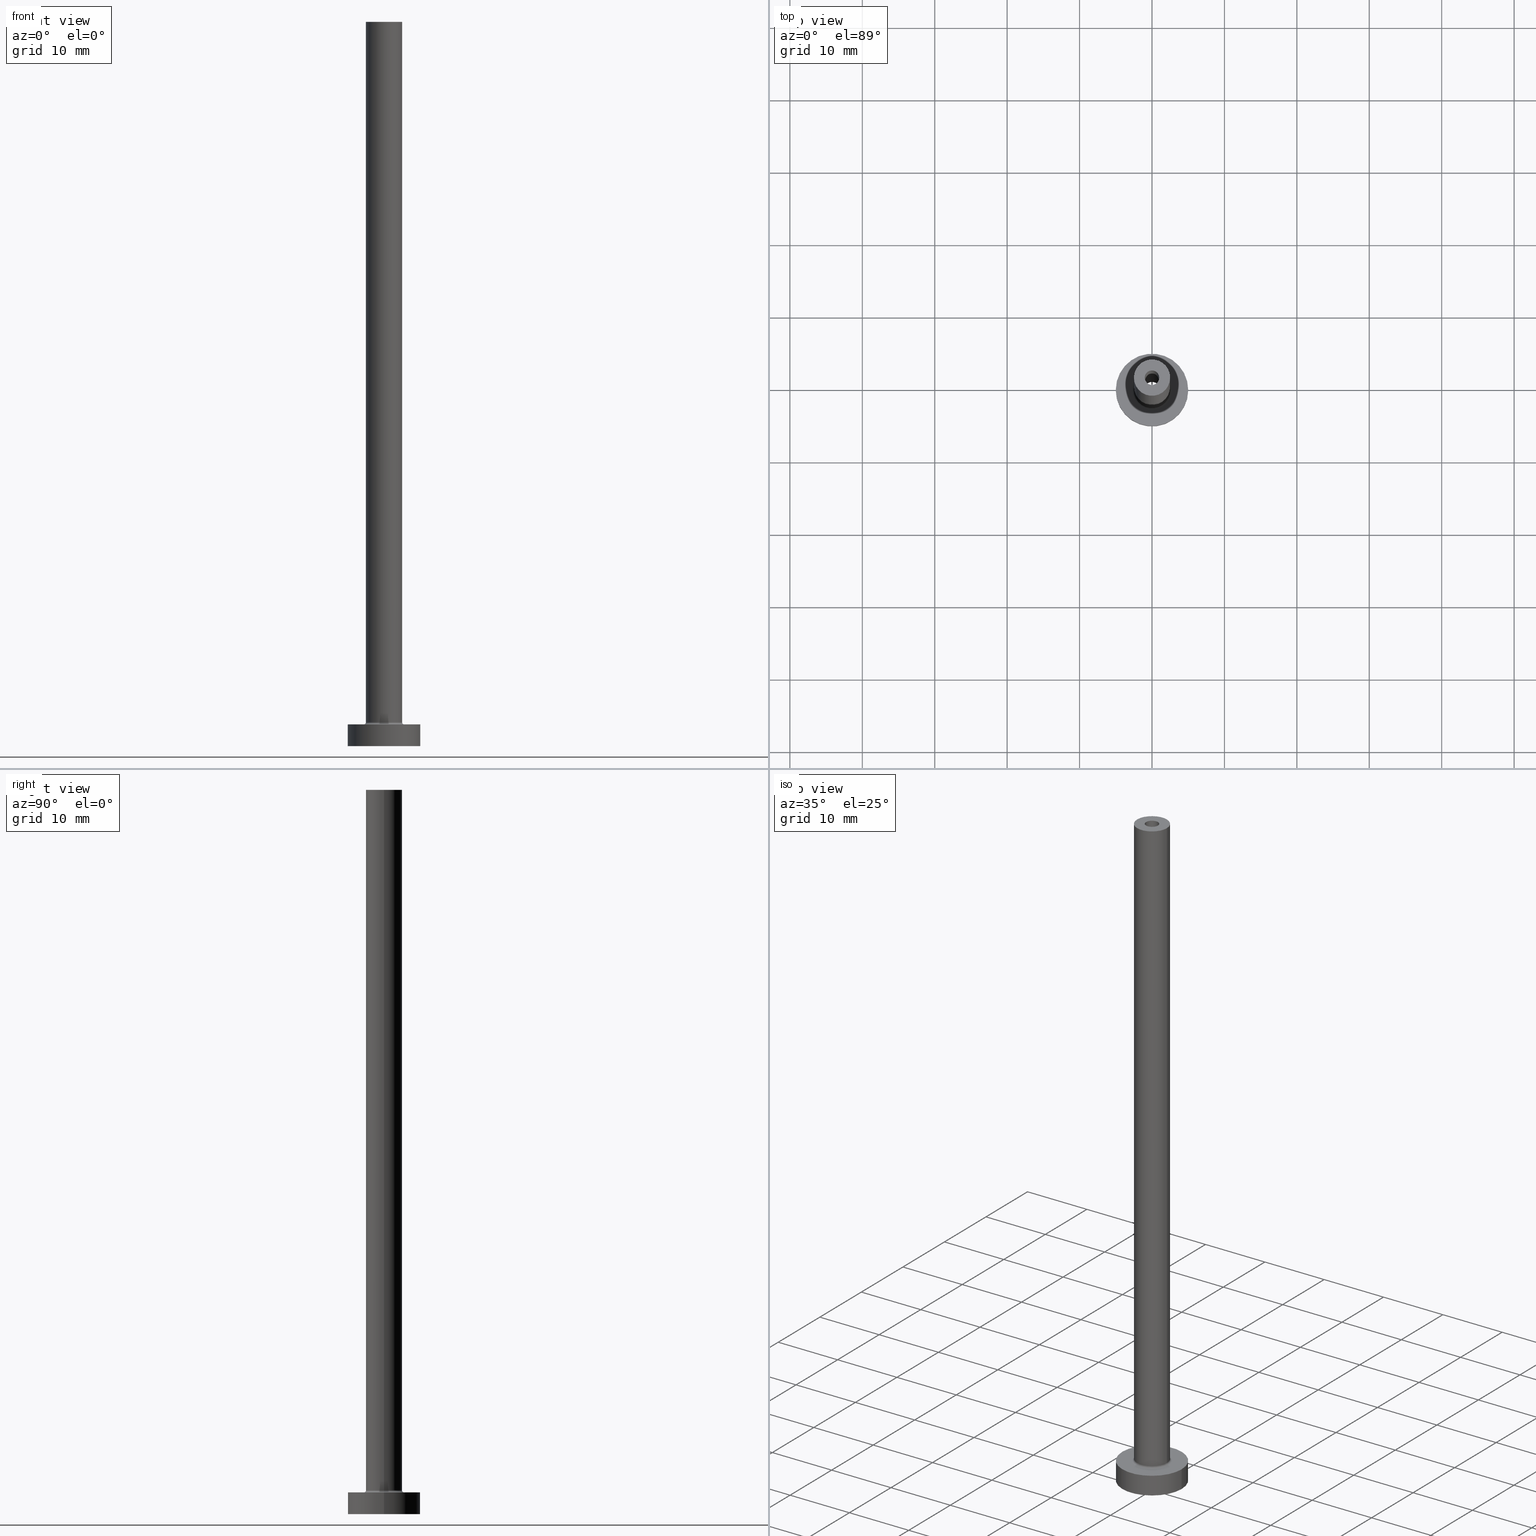
[diagram: canonical four-view strip — front | top / right | iso, engineering-drawing reading convention]
A machine part, canonical four-view strip (front | top / right | iso — engineering-drawing reading convention). The complete STEP part file that produces these views, byte-faithful:
ISO-10303-21;
HEADER;
FILE_DESCRIPTION (( 'STEP AP203' ),
    '1' );
FILE_NAME ('7d4d.STEP',
    '2023-02-13T18:15:31',
    ( '' ),
    ( '' ),
    'SwSTEP 2.0',
    'SolidWorks 2019',
    '' );
FILE_SCHEMA (( 'CONFIG_CONTROL_DESIGN' ));
ENDSEC;

DATA;
#1 = DIRECTION ( 'NONE',  ( 1.000000000000000000, 0.000000000000000000, 0.000000000000000000 ) ) ;
#2 = PERSON_AND_ORGANIZATION ( #367, #9 ) ;
#3 = DIRECTION ( 'NONE',  ( 0.000000000000000000, 0.000000000000000000, 1.000000000000000000 ) ) ;
#4 = AXIS2_PLACEMENT_3D ( 'NONE', #114, #293, #326 ) ;
#5 = PERSON_AND_ORGANIZATION ( #367, #9 ) ;
#6 = EDGE_CURVE ( 'NONE', #172, #64, #363, .T. ) ;
#7 = EDGE_LOOP ( 'NONE', ( #163, #356, #424, #399 ) ) ;
#8 = CARTESIAN_POINT ( 'NONE',  ( 1.149999999999999911, 1.408343819019456028E-16, 0.000000000000000000 ) ) ;
#9 = ORGANIZATION ( 'NEUR�EN�', 'NEUR�EN�', '' ) ;
#10 = DIRECTION ( 'NONE',  ( 1.000000000000000000, 0.000000000000000000, 0.000000000000000000 ) ) ;
#11 = FACE_OUTER_BOUND ( 'NONE', #7, .T. ) ;
#12 = EDGE_CURVE ( 'NONE', #267, #90, #451, .T. ) ;
#13 = DIRECTION ( 'NONE',  ( 0.000000000000000000, 0.000000000000000000, 1.000000000000000000 ) ) ;
#14 = AXIS2_PLACEMENT_3D ( 'NONE', #179, #30, #71 ) ;
#15 = DIRECTION ( 'NONE',  ( -0.000000000000000000, -0.000000000000000000, -1.000000000000000000 ) ) ;
#16 = CIRCLE ( 'NONE', #4, 2.500000000000000000 ) ;
#17 = CIRCLE ( 'NONE', #273, 5.000000000000000000 ) ;
#18 = CALENDAR_DATE ( 2023, 13, 2 ) ;
#19 = EDGE_CURVE ( 'NONE', #64, #172, #87, .T. ) ;
#20 = CARTESIAN_POINT ( 'NONE',  ( 0.000000000000000000, 0.000000000000000000, 100.0000000000000000 ) ) ;
#21 = CARTESIAN_POINT ( 'NONE',  ( 0.000000000000000000, 0.000000000000000000, 0.000000000000000000 ) ) ;
#22 = LOCAL_TIME ( 19, 15, 31.00000000000000000, #405 ) ;
#23 = CARTESIAN_POINT ( 'NONE',  ( 1.000000000000000000, 1.224646799147353207E-16, 65.00000000000000000 ) ) ;
#24 = CARTESIAN_POINT ( 'NONE',  ( 0.000000000000000000, 0.000000000000000000, 3.000000000000000000 ) ) ;
#25 = ORIENTED_EDGE ( 'NONE', *, *, #253, .T. ) ;
#26 = LINE ( 'NONE', #235, #438 ) ;
#27 = ORIENTED_EDGE ( 'NONE', *, *, #164, .T. ) ;
#28 =( GEOMETRIC_REPRESENTATION_CONTEXT ( 3 ) GLOBAL_UNCERTAINTY_ASSIGNED_CONTEXT ( ( #362 ) ) GLOBAL_UNIT_ASSIGNED_CONTEXT ( ( #171, #102, #217 ) ) REPRESENTATION_CONTEXT ( 'NONE', 'WORKASPACE' ) );
#29 = DIRECTION ( 'NONE',  ( 1.000000000000000000, 0.000000000000000000, 0.000000000000000000 ) ) ;
#30 = DIRECTION ( 'NONE',  ( -0.000000000000000000, -0.000000000000000000, -1.000000000000000000 ) ) ;
#31 = AXIS2_PLACEMENT_3D ( 'NONE', #383, #243, #63 ) ;
#32 = EDGE_CURVE ( 'NONE', #267, #73, #137, .T. ) ;
#33 = ORIENTED_EDGE ( 'NONE', *, *, #409, .F. ) ;
#34 = VERTEX_POINT ( 'NONE', #108 ) ;
#35 = MECHANICAL_CONTEXT ( 'NONE', #349, 'mechanical' ) ;
#36 = EDGE_LOOP ( 'NONE', ( #207, #435 ) ) ;
#37 = EDGE_CURVE ( 'NONE', #38, #257, #118, .T. ) ;
#38 = VERTEX_POINT ( 'NONE', #177 ) ;
#39 = CLOSED_SHELL ( 'NONE', ( #78, #145, #50, #104, #214, #70, #374, #357, #45, #427, #280, #226, #62, #380 ) ) ;
#40 = DIRECTION ( 'NONE',  ( 0.000000000000000000, 0.000000000000000000, 1.000000000000000000 ) ) ;
#41 = EDGE_LOOP ( 'NONE', ( #248, #300, #391, #252 ) ) ;
#42 = ORIENTED_EDGE ( 'NONE', *, *, #253, .F. ) ;
#43 = CARTESIAN_POINT ( 'NONE',  ( -2.500000000000000000, 0.000000000000000000, 100.0000000000000000 ) ) ;
#44 = MANIFOLD_SOLID_BREP ( 'Odebrat vysunut�m4', #39 ) ;
#45 = ADVANCED_FACE ( 'NONE', ( #315 ), #281, .T. ) ;
#46 = AXIS2_PLACEMENT_3D ( 'NONE', #262, #15, #408 ) ;
#47 = DATE_TIME_ROLE ( 'creation_date' ) ;
#48 = CARTESIAN_POINT ( 'NONE',  ( 1.149999999999999911, 1.408343819019456028E-16, 65.00000000000000000 ) ) ;
#49 = CARTESIAN_POINT ( 'NONE',  ( 0.000000000000000000, 0.000000000000000000, 65.00000000000000000 ) ) ;
#50 = ADVANCED_FACE ( 'NONE', ( #368 ), #146, .F. ) ;
#51 = APPROVAL_STATUS ( 'not_yet_approved' ) ;
#52 = DIRECTION ( 'NONE',  ( -1.000000000000000000, 0.000000000000000000, 0.000000000000000000 ) ) ;
#53 = CC_DESIGN_SECURITY_CLASSIFICATION ( #307, ( #117 ) ) ;
#54 = CIRCLE ( 'NONE', #191, 0.2999999999999999334 ) ;
#55 = DIRECTION ( 'NONE',  ( -1.000000000000000000, 0.000000000000000000, 0.000000000000000000 ) ) ;
#56 = CARTESIAN_POINT ( 'NONE',  ( 0.000000000000000000, 0.000000000000000000, 3.000000000000000000 ) ) ;
#57 = DIRECTION ( 'NONE',  ( -0.000000000000000000, -0.000000000000000000, -1.000000000000000000 ) ) ;
#58 = EDGE_CURVE ( 'NONE', #90, #419, #193, .T. ) ;
#59 = DIRECTION ( 'NONE',  ( 0.000000000000000000, -1.000000000000000000, 0.000000000000000000 ) ) ;
#60 = ORIENTED_EDGE ( 'NONE', *, *, #175, .F. ) ;
#61 = CARTESIAN_POINT ( 'NONE',  ( -5.000000000000000000, 0.000000000000000000, 3.000000000000000000 ) ) ;
#62 = ADVANCED_FACE ( 'NONE', ( #113, #373 ), #82, .F. ) ;
#63 = DIRECTION ( 'NONE',  ( 1.000000000000000000, 0.000000000000000000, 0.000000000000000000 ) ) ;
#64 = VERTEX_POINT ( 'NONE', #43 ) ;
#65 = AXIS2_PLACEMENT_3D ( 'NONE', #353, #3, #10 ) ;
#66 = CARTESIAN_POINT ( 'NONE',  ( -1.000000000000000000, 0.000000000000000000, 100.0000000000000000 ) ) ;
#67 = DIRECTION ( 'NONE',  ( 1.000000000000000000, 0.000000000000000000, 0.000000000000000000 ) ) ;
#68 = FACE_OUTER_BOUND ( 'NONE', #393, .T. ) ;
#69 = ORIENTED_EDGE ( 'NONE', *, *, #449, .T. ) ;
#70 = ADVANCED_FACE ( 'NONE', ( #11 ), #328, .T. ) ;
#71 = DIRECTION ( 'NONE',  ( 1.000000000000000000, 0.000000000000000000, 0.000000000000000000 ) ) ;
#72 = AXIS2_PLACEMENT_3D ( 'NONE', #355, #106, #212 ) ;
#73 = VERTEX_POINT ( 'NONE', #86 ) ;
#74 = DIRECTION ( 'NONE',  ( 0.000000000000000000, 0.000000000000000000, 1.000000000000000000 ) ) ;
#75 = DIRECTION ( 'NONE',  ( 0.000000000000000000, 0.000000000000000000, 1.000000000000000000 ) ) ;
#76 = AXIS2_PLACEMENT_3D ( 'NONE', #21, #265, #412 ) ;
#77 = VERTEX_POINT ( 'NONE', #365 ) ;
#78 = ADVANCED_FACE ( 'NONE', ( #369 ), #444, .F. ) ;
#79 = DIRECTION ( 'NONE',  ( 0.000000000000000000, 0.000000000000000000, -1.000000000000000000 ) ) ;
#80 = DIRECTION ( 'NONE',  ( 1.000000000000000000, 0.000000000000000000, 0.000000000000000000 ) ) ;
#81 = COORDINATED_UNIVERSAL_TIME_OFFSET ( 1, 0, .AHEAD. ) ;
#82 = PLANE ( 'NONE',  #240 ) ;
#83 = EDGE_CURVE ( 'NONE', #160, #348, #430, .T. ) ;
#84 = PERSON_AND_ORGANIZATION_ROLE ( 'creator' ) ;
#85 = DIRECTION ( 'NONE',  ( -1.000000000000000000, 0.000000000000000000, 0.000000000000000000 ) ) ;
#86 = CARTESIAN_POINT ( 'NONE',  ( -1.149999999999999911, 0.000000000000000000, 0.000000000000000000 ) ) ;
#87 = CIRCLE ( 'NONE', #324, 2.500000000000000000 ) ;
#88 = AXIS2_PLACEMENT_3D ( 'NONE', #299, #162, #303 ) ;
#89 = CARTESIAN_POINT ( 'NONE',  ( -2.799999999999999822, 3.429011037612588783E-16, 3.299999999999997158 ) ) ;
#90 = VERTEX_POINT ( 'NONE', #48 ) ;
#91 = FACE_BOUND ( 'NONE', #181, .T. ) ;
#92 = ORIENTED_EDGE ( 'NONE', *, *, #164, .F. ) ;
#93 = CIRCLE ( 'NONE', #72, 2.500000000000000000 ) ;
#94 = CYLINDRICAL_SURFACE ( 'NONE', #111, 1.149999999999999911 ) ;
#95 = ORIENTED_EDGE ( 'NONE', *, *, #175, .T. ) ;
#96 = AXIS2_PLACEMENT_3D ( 'NONE', #360, #401, #52 ) ;
#97 = FACE_OUTER_BOUND ( 'NONE', #127, .T. ) ;
#98 = ORIENTED_EDGE ( 'NONE', *, *, #83, .T. ) ;
#99 = EDGE_CURVE ( 'NONE', #348, #160, #224, .T. ) ;
#100 = CARTESIAN_POINT ( 'NONE',  ( -5.000000000000000000, 0.000000000000000000, 3.000000000000000000 ) ) ;
#101 = EDGE_LOOP ( 'NONE', ( #135, #105 ) ) ;
#102 =( NAMED_UNIT ( * ) PLANE_ANGLE_UNIT ( ) SI_UNIT ( $, .RADIAN. ) );
#103 = CARTESIAN_POINT ( 'NONE',  ( 0.000000000000000000, 0.000000000000000000, 3.000000000000000000 ) ) ;
#104 = ADVANCED_FACE ( 'NONE', ( #335 ), #295, .T. ) ;
#105 = ORIENTED_EDGE ( 'NONE', *, *, #6, .T. ) ;
#106 = DIRECTION ( 'NONE',  ( 0.000000000000000000, 0.000000000000000000, 1.000000000000000000 ) ) ;
#107 = AXIS2_PLACEMENT_3D ( 'NONE', #310, #343, #319 ) ;
#108 = CARTESIAN_POINT ( 'NONE',  ( 5.000000000000000000, 6.123233995736766282E-16, 3.000000000000000000 ) ) ;
#109 = CIRCLE ( 'NONE', #169, 1.000000000000000000 ) ;
#110 = VERTEX_POINT ( 'NONE', #187 ) ;
#111 = AXIS2_PLACEMENT_3D ( 'NONE', #126, #198, #375 ) ;
#112 = APPROVAL ( #347, 'NEUR�EN�' ) ;
#113 = FACE_BOUND ( 'NONE', #350, .T. ) ;
#114 = CARTESIAN_POINT ( 'NONE',  ( 0.000000000000000000, 0.000000000000000000, 3.299999999999997158 ) ) ;
#115 = EDGE_CURVE ( 'NONE', #110, #77, #16, .T. ) ;
#116 = CARTESIAN_POINT ( 'NONE',  ( 0.000000000000000000, 0.000000000000000000, 100.0000000000000000 ) ) ;
#117 = PRODUCT_DEFINITION_FORMATION_WITH_SPECIFIED_SOURCE ( 'LIBOVOLN�', '', #388, .NOT_KNOWN. ) ;
#118 = CIRCLE ( 'NONE', #445, 2.799999999999999822 ) ;
#119 = PERSON_AND_ORGANIZATION ( #367, #9 ) ;
#120 = CARTESIAN_POINT ( 'NONE',  ( 0.000000000000000000, 0.000000000000000000, 3.299999999999997158 ) ) ;
#121 = CALENDAR_DATE ( 2023, 13, 2 ) ;
#122 = DIRECTION ( 'NONE',  ( 0.000000000000000000, 0.000000000000000000, 1.000000000000000000 ) ) ;
#123 = CARTESIAN_POINT ( 'NONE',  ( -2.500000000000000000, 0.000000000000000000, 100.0000000000000000 ) ) ;
#124 = CC_DESIGN_PERSON_AND_ORGANIZATION_ASSIGNMENT ( #287, #84, ( #117 ) ) ;
#125 = DIRECTION ( 'NONE',  ( 0.000000000000000000, 0.000000000000000000, 1.000000000000000000 ) ) ;
#126 = CARTESIAN_POINT ( 'NONE',  ( 0.000000000000000000, 0.000000000000000000, 68.25269119345811930 ) ) ;
#127 = EDGE_LOOP ( 'NONE', ( #204, #25, #283, #69 ) ) ;
#128 = DIRECTION ( 'NONE',  ( 0.000000000000000000, 0.000000000000000000, 1.000000000000000000 ) ) ;
#129 = EDGE_CURVE ( 'NONE', #34, #413, #147, .T. ) ;
#130 = EDGE_LOOP ( 'NONE', ( #220, #459 ) ) ;
#131 = CIRCLE ( 'NONE', #232, 5.000000000000000000 ) ;
#132 = DIRECTION ( 'NONE',  ( 1.224646799147353207E-16, 1.000000000000000000, -0.000000000000000000 ) ) ;
#133 = ORIENTED_EDGE ( 'NONE', *, *, #192, .F. ) ;
#134 = APPLICATION_PROTOCOL_DEFINITION ( 'international standard', 'config_control_design', 1994, #349 ) ;
#135 = ORIENTED_EDGE ( 'NONE', *, *, #19, .T. ) ;
#136 = APPROVAL_ROLE ( '' ) ;
#137 = LINE ( 'NONE', #278, #354 ) ;
#138 = EDGE_CURVE ( 'NONE', #419, #73, #396, .T. ) ;
#139 = DATE_AND_TIME ( #176, #195 ) ;
#140 = CARTESIAN_POINT ( 'NONE',  ( 0.000000000000000000, 0.000000000000000000, 65.00000000000000000 ) ) ;
#141 = PERSON_AND_ORGANIZATION_ROLE ( 'design_owner' ) ;
#142 = DIRECTION ( 'NONE',  ( -0.000000000000000000, -0.000000000000000000, -1.000000000000000000 ) ) ;
#143 = LINE ( 'NONE', #66, #270 ) ;
#144 = ORIENTED_EDGE ( 'NONE', *, *, #338, .T. ) ;
#145 = ADVANCED_FACE ( 'NONE', ( #290 ), #291, .F. ) ;
#146 = TOROIDAL_SURFACE ( 'NONE', #387, 2.799999999999999822, 0.2999999999999999889 ) ;
#147 = LINE ( 'NONE', #189, #332 ) ;
#148 = AXIS2_PLACEMENT_3D ( 'NONE', #271, #417, #274 ) ;
#149 = DIRECTION ( 'NONE',  ( 1.000000000000000000, 0.000000000000000000, 0.000000000000000000 ) ) ;
#150 = EDGE_CURVE ( 'NONE', #304, #313, #109, .T. ) ;
#151 = PERSON_AND_ORGANIZATION ( #367, #9 ) ;
#152 = CARTESIAN_POINT ( 'NONE',  ( 0.000000000000000000, 0.000000000000000000, 0.000000000000000000 ) ) ;
#153 = CIRCLE ( 'NONE', #416, 5.000000000000000000 ) ;
#154 = DIRECTION ( 'NONE',  ( 1.000000000000000000, 0.000000000000000000, 0.000000000000000000 ) ) ;
#155 = APPROVAL_DATE_TIME ( #182, #158 ) ;
#156 = CARTESIAN_POINT ( 'NONE',  ( -1.000000000000000000, 0.000000000000000000, 65.00000000000000000 ) ) ;
#157 = CARTESIAN_POINT ( 'NONE',  ( 0.000000000000000000, 0.000000000000000000, 3.299999999999997158 ) ) ;
#158 = APPROVAL ( #51, 'NEUR�EN�' ) ;
#159 = FACE_BOUND ( 'NONE', #130, .T. ) ;
#160 = VERTEX_POINT ( 'NONE', #156 ) ;
#161 = VECTOR ( 'NONE', #439, 1000.000000000000000 ) ;
#162 = DIRECTION ( 'NONE',  ( -0.000000000000000000, -0.000000000000000000, -1.000000000000000000 ) ) ;
#163 = ORIENTED_EDGE ( 'NONE', *, *, #129, .F. ) ;
#164 = EDGE_CURVE ( 'NONE', #313, #304, #437, .T. ) ;
#165 = DIRECTION ( 'NONE',  ( 0.000000000000000000, 0.000000000000000000, -1.000000000000000000 ) ) ;
#166 = ORIENTED_EDGE ( 'NONE', *, *, #246, .T. ) ;
#167 = FACE_OUTER_BOUND ( 'NONE', #36, .T. ) ;
#168 = EDGE_LOOP ( 'NONE', ( #382, #426, #433, #202 ) ) ;
#169 = AXIS2_PLACEMENT_3D ( 'NONE', #116, #406, #228 ) ;
#170 = VECTOR ( 'NONE', #237, 1000.000000000000000 ) ;
#171 =( LENGTH_UNIT ( ) NAMED_UNIT ( * ) SI_UNIT ( .MILLI., .METRE. ) );
#172 = VERTEX_POINT ( 'NONE', #201 ) ;
#173 = DIRECTION ( 'NONE',  ( 0.000000000000000000, 0.000000000000000000, -1.000000000000000000 ) ) ;
#174 = ORIENTED_EDGE ( 'NONE', *, *, #115, .F. ) ;
#175 = EDGE_CURVE ( 'NONE', #304, #348, #456, .T. ) ;
#176 = CALENDAR_DATE ( 2023, 13, 2 ) ;
#177 = CARTESIAN_POINT ( 'NONE',  ( -2.799999999999999822, 3.429011037612589276E-16, 2.999999999999998668 ) ) ;
#178 = ORIENTED_EDGE ( 'NONE', *, *, #37, .F. ) ;
#179 = CARTESIAN_POINT ( 'NONE',  ( 0.000000000000000000, 0.000000000000000000, 0.000000000000000000 ) ) ;
#180 = EDGE_LOOP ( 'NONE', ( #308, #379, #377, #286 ) ) ;
#181 = EDGE_LOOP ( 'NONE', ( #311, #337 ) ) ;
#182 = DATE_AND_TIME ( #18, #279 ) ;
#183 = CIRCLE ( 'NONE', #346, 0.2999999999999999334 ) ;
#184 = DIRECTION ( 'NONE',  ( 0.000000000000000000, 0.000000000000000000, 1.000000000000000000 ) ) ;
#185 = DATE_TIME_ROLE ( 'classification_date' ) ;
#186 = CARTESIAN_POINT ( 'NONE',  ( 0.000000000000000000, 0.000000000000000000, 65.00000000000000000 ) ) ;
#187 = CARTESIAN_POINT ( 'NONE',  ( -2.500000000000000000, 0.000000000000000000, 3.299999999999997158 ) ) ;
#188 = PERSON_AND_ORGANIZATION ( #367, #9 ) ;
#189 = CARTESIAN_POINT ( 'NONE',  ( 5.000000000000000000, 6.123233995736766282E-16, 3.000000000000000000 ) ) ;
#190 = AXIS2_PLACEMENT_3D ( 'NONE', #152, #446, #149 ) ;
#191 = AXIS2_PLACEMENT_3D ( 'NONE', #89, #132, #454 ) ;
#192 = EDGE_CURVE ( 'NONE', #77, #257, #183, .T. ) ;
#193 = LINE ( 'NONE', #402, #161 ) ;
#194 = CARTESIAN_POINT ( 'NONE',  ( 0.000000000000000000, 0.000000000000000000, 65.00000000000000000 ) ) ;
#195 = LOCAL_TIME ( 19, 15, 31.00000000000000000, #277 ) ;
#196 = ORIENTED_EDGE ( 'NONE', *, *, #99, .T. ) ;
#197 = AXIS2_PLACEMENT_3D ( 'NONE', #282, #434, #317 ) ;
#198 = DIRECTION ( 'NONE',  ( 0.000000000000000000, 0.000000000000000000, -1.000000000000000000 ) ) ;
#199 = APPLICATION_CONTEXT ( 'configuration controlled 3d designs of mechanical parts and assemblies' ) ;
#200 = EDGE_CURVE ( 'NONE', #413, #211, #256, .T. ) ;
#201 = CARTESIAN_POINT ( 'NONE',  ( 2.500000000000000000, 3.061616997868382648E-16, 100.0000000000000000 ) ) ;
#202 = ORIENTED_EDGE ( 'NONE', *, *, #289, .F. ) ;
#203 = CARTESIAN_POINT ( 'NONE',  ( 2.799999999999999822, 0.000000000000000000, 2.999999999999998668 ) ) ;
#204 = ORIENTED_EDGE ( 'NONE', *, *, #58, .F. ) ;
#205 = APPROVAL_PERSON_ORGANIZATION ( #2, #112, #136 ) ;
#206 = LINE ( 'NONE', #123, #216 ) ;
#207 = ORIENTED_EDGE ( 'NONE', *, *, #443, .F. ) ;
#208 = APPLICATION_PROTOCOL_DEFINITION ( 'international standard', 'config_control_design', 1994, #199 ) ;
#209 = EDGE_CURVE ( 'NONE', #110, #38, #54, .T. ) ;
#210 = CARTESIAN_POINT ( 'NONE',  ( 0.000000000000000000, 0.000000000000000000, 100.0000000000000000 ) ) ;
#211 = VERTEX_POINT ( 'NONE', #421 ) ;
#212 = DIRECTION ( 'NONE',  ( 1.000000000000000000, 0.000000000000000000, 0.000000000000000000 ) ) ;
#213 = ORIENTED_EDGE ( 'NONE', *, *, #99, .F. ) ;
#214 = ADVANCED_FACE ( 'NONE', ( #241 ), #233, .T. ) ;
#215 = AXIS2_PLACEMENT_3D ( 'NONE', #49, #13, #331 ) ;
#216 = VECTOR ( 'NONE', #57, 1000.000000000000000 ) ;
#217 =( NAMED_UNIT ( * ) SI_UNIT ( $, .STERADIAN. ) SOLID_ANGLE_UNIT ( ) );
#218 = VERTEX_POINT ( 'NONE', #61 ) ;
#219 = DATE_AND_TIME ( #359, #385 ) ;
#220 = ORIENTED_EDGE ( 'NONE', *, *, #449, .F. ) ;
#221 = CARTESIAN_POINT ( 'NONE',  ( 0.000000000000000000, 0.000000000000000000, 65.00000000000000000 ) ) ;
#222 = APPROVAL_PERSON_ORGANIZATION ( #151, #292, #325 ) ;
#223 = DATE_AND_TIME ( #121, #22 ) ;
#224 = CIRCLE ( 'NONE', #215, 1.000000000000000000 ) ;
#225 = DIRECTION ( 'NONE',  ( 0.000000000000000000, 0.000000000000000000, 1.000000000000000000 ) ) ;
#226 = ADVANCED_FACE ( 'NONE', ( #97 ), #94, .F. ) ;
#227 = PERSON_AND_ORGANIZATION_ROLE ( 'classification_officer' ) ;
#228 = DIRECTION ( 'NONE',  ( 1.000000000000000000, 0.000000000000000000, 0.000000000000000000 ) ) ;
#229 = EDGE_CURVE ( 'NONE', #172, #77, #26, .T. ) ;
#230 = DIRECTION ( 'NONE',  ( 0.000000000000000000, 0.000000000000000000, -1.000000000000000000 ) ) ;
#231 = AXIS2_PLACEMENT_3D ( 'NONE', #448, #122, #264 ) ;
#232 = AXIS2_PLACEMENT_3D ( 'NONE', #56, #297, #381 ) ;
#233 = CYLINDRICAL_SURFACE ( 'NONE', #88, 5.000000000000000000 ) ;
#234 = ORIENTED_EDGE ( 'NONE', *, *, #32, .F. ) ;
#235 = CARTESIAN_POINT ( 'NONE',  ( 2.500000000000000000, 3.061616997868382648E-16, 100.0000000000000000 ) ) ;
#236 = ORIENTED_EDGE ( 'NONE', *, *, #83, .F. ) ;
#237 = DIRECTION ( 'NONE',  ( -0.000000000000000000, -0.000000000000000000, -1.000000000000000000 ) ) ;
#238 = CC_DESIGN_APPROVAL ( #158, ( #117 ) ) ;
#239 = EDGE_LOOP ( 'NONE', ( #27, #95, #236, #386 ) ) ;
#240 = AXIS2_PLACEMENT_3D ( 'NONE', #221, #225, #258 ) ;
#241 = FACE_OUTER_BOUND ( 'NONE', #41, .T. ) ;
#242 = ORIENTED_EDGE ( 'NONE', *, *, #150, .T. ) ;
#243 = DIRECTION ( 'NONE',  ( -0.000000000000000000, -0.000000000000000000, -1.000000000000000000 ) ) ;
#244 = EDGE_LOOP ( 'NONE', ( #174, #384, #318, #133 ) ) ;
#245 = CIRCLE ( 'NONE', #14, 1.149999999999999911 ) ;
#246 = EDGE_CURVE ( 'NONE', #218, #34, #131, .T. ) ;
#247 = CARTESIAN_POINT ( 'NONE',  ( 0.000000000000000000, 0.000000000000000000, 0.000000000000000000 ) ) ;
#248 = ORIENTED_EDGE ( 'NONE', *, *, #338, .F. ) ;
#249 = DIRECTION ( 'NONE',  ( 1.000000000000000000, 0.000000000000000000, 0.000000000000000000 ) ) ;
#250 = ORIENTED_EDGE ( 'NONE', *, *, #138, .T. ) ;
#251 = APPROVAL_DATE_TIME ( #139, #112 ) ;
#252 = ORIENTED_EDGE ( 'NONE', *, *, #306, .F. ) ;
#253 = EDGE_CURVE ( 'NONE', #90, #267, #309, .T. ) ;
#254 = CYLINDRICAL_SURFACE ( 'NONE', #107, 1.000000000000000000 ) ;
#255 = DIRECTION ( 'NONE',  ( 1.000000000000000000, 0.000000000000000000, 0.000000000000000000 ) ) ;
#256 = CIRCLE ( 'NONE', #148, 5.000000000000000000 ) ;
#257 = VERTEX_POINT ( 'NONE', #203 ) ;
#258 = DIRECTION ( 'NONE',  ( 1.000000000000000000, 0.000000000000000000, -0.000000000000000000 ) ) ;
#259 = PERSON_AND_ORGANIZATION_ROLE ( 'creator' ) ;
#260 = CARTESIAN_POINT ( 'NONE',  ( 0.000000000000000000, 0.000000000000000000, 100.0000000000000000 ) ) ;
#261 = DIRECTION ( 'NONE',  ( -0.000000000000000000, -0.000000000000000000, -1.000000000000000000 ) ) ;
#262 = CARTESIAN_POINT ( 'NONE',  ( 0.000000000000000000, 0.000000000000000000, 100.0000000000000000 ) ) ;
#263 = COORDINATED_UNIVERSAL_TIME_OFFSET ( 1, 0, .AHEAD. ) ;
#264 = DIRECTION ( 'NONE',  ( 1.000000000000000000, 0.000000000000000000, 0.000000000000000000 ) ) ;
#265 = DIRECTION ( 'NONE',  ( 0.000000000000000000, 0.000000000000000000, 1.000000000000000000 ) ) ;
#266 = CARTESIAN_POINT ( 'NONE',  ( 1.000000000000000000, 1.224646799147353207E-16, 100.0000000000000000 ) ) ;
#267 = VERTEX_POINT ( 'NONE', #342 ) ;
#268 = CC_DESIGN_DATE_AND_TIME_ASSIGNMENT ( #364, #185, ( #307 ) ) ;
#269 = DIRECTION ( 'NONE',  ( 1.000000000000000000, 0.000000000000000000, 0.000000000000000000 ) ) ;
#270 = VECTOR ( 'NONE', #173, 1000.000000000000000 ) ;
#271 = CARTESIAN_POINT ( 'NONE',  ( 0.000000000000000000, 0.000000000000000000, 0.000000000000000000 ) ) ;
#272 = EDGE_LOOP ( 'NONE', ( #92, #429 ) ) ;
#273 = AXIS2_PLACEMENT_3D ( 'NONE', #24, #450, #269 ) ;
#274 = DIRECTION ( 'NONE',  ( 1.000000000000000000, 0.000000000000000000, 0.000000000000000000 ) ) ;
#275 = DIRECTION ( 'NONE',  ( 0.000000000000000000, 0.000000000000000000, 1.000000000000000000 ) ) ;
#276 = DIRECTION ( 'NONE',  ( 0.000000000000000000, 0.000000000000000000, 1.000000000000000000 ) ) ;
#277 = COORDINATED_UNIVERSAL_TIME_OFFSET ( 1, 0, .AHEAD. ) ;
#278 = CARTESIAN_POINT ( 'NONE',  ( -1.149999999999999911, 0.000000000000000000, 68.25269119345811930 ) ) ;
#279 = LOCAL_TIME ( 19, 15, 31.00000000000000000, #81 ) ;
#280 = ADVANCED_FACE ( 'NONE', ( #423 ), #411, .F. ) ;
#281 = CYLINDRICAL_SURFACE ( 'NONE', #345, 2.500000000000000000 ) ;
#282 = CARTESIAN_POINT ( 'NONE',  ( 0.000000000000000000, 0.000000000000000000, 3.000000000000000000 ) ) ;
#283 = ORIENTED_EDGE ( 'NONE', *, *, #32, .T. ) ;
#284 = AXIS2_PLACEMENT_3D ( 'NONE', #432, #275, #249 ) ;
#285 = CARTESIAN_POINT ( 'NONE',  ( 5.000000000000000000, 6.123233995736766282E-16, 0.000000000000000000 ) ) ;
#286 = ORIENTED_EDGE ( 'NONE', *, *, #115, .T. ) ;
#287 = PERSON_AND_ORGANIZATION ( #367, #9 ) ;
#288 = DIRECTION ( 'NONE',  ( 0.000000000000000000, 0.000000000000000000, 1.000000000000000000 ) ) ;
#289 = EDGE_CURVE ( 'NONE', #64, #110, #206, .T. ) ;
#290 = FACE_OUTER_BOUND ( 'NONE', #322, .T. ) ;
#291 = CYLINDRICAL_SURFACE ( 'NONE', #370, 1.149999999999999911 ) ;
#292 = APPROVAL ( #407, 'NEUR�EN�' ) ;
#293 = DIRECTION ( 'NONE',  ( 0.000000000000000000, 0.000000000000000000, 1.000000000000000000 ) ) ;
#294 = PERSON_AND_ORGANIZATION ( #367, #9 ) ;
#295 = CYLINDRICAL_SURFACE ( 'NONE', #46, 2.500000000000000000 ) ;
#296 = CC_DESIGN_APPROVAL ( #112, ( #341 ) ) ;
#297 = DIRECTION ( 'NONE',  ( 0.000000000000000000, 0.000000000000000000, 1.000000000000000000 ) ) ;
#298 = CC_DESIGN_APPROVAL ( #292, ( #307 ) ) ;
#299 = CARTESIAN_POINT ( 'NONE',  ( 0.000000000000000000, 0.000000000000000000, 3.000000000000000000 ) ) ;
#300 = ORIENTED_EDGE ( 'NONE', *, *, #129, .T. ) ;
#301 = DIRECTION ( 'NONE',  ( 1.000000000000000000, 0.000000000000000000, 0.000000000000000000 ) ) ;
#302 = ORIENTED_EDGE ( 'NONE', *, *, #209, .F. ) ;
#303 = DIRECTION ( 'NONE',  ( -1.000000000000000000, 0.000000000000000000, 0.000000000000000000 ) ) ;
#304 = VERTEX_POINT ( 'NONE', #266 ) ;
#305 = PLANE ( 'NONE',  #76 ) ;
#306 = EDGE_CURVE ( 'NONE', #218, #211, #457, .T. ) ;
#307 = SECURITY_CLASSIFICATION ( '', '', #333 ) ;
#308 = ORIENTED_EDGE ( 'NONE', *, *, #229, .F. ) ;
#309 = CIRCLE ( 'NONE', #397, 1.149999999999999911 ) ;
#310 = CARTESIAN_POINT ( 'NONE',  ( 0.000000000000000000, 0.000000000000000000, 100.0000000000000000 ) ) ;
#311 = ORIENTED_EDGE ( 'NONE', *, *, #323, .T. ) ;
#312 = DIRECTION ( 'NONE',  ( 1.000000000000000000, 0.000000000000000000, -0.000000000000000000 ) ) ;
#313 = VERTEX_POINT ( 'NONE', #336 ) ;
#314 = DIRECTION ( 'NONE',  ( 1.000000000000000000, 0.000000000000000000, 0.000000000000000000 ) ) ;
#315 = FACE_OUTER_BOUND ( 'NONE', #180, .T. ) ;
#316 = AXIS2_PLACEMENT_3D ( 'NONE', #140, #276, #67 ) ;
#317 = DIRECTION ( 'NONE',  ( 1.000000000000000000, 0.000000000000000000, -0.000000000000000000 ) ) ;
#318 = ORIENTED_EDGE ( 'NONE', *, *, #323, .F. ) ;
#319 = DIRECTION ( 'NONE',  ( -1.000000000000000000, 0.000000000000000000, 0.000000000000000000 ) ) ;
#320 = DIRECTION ( 'NONE',  ( 0.000000000000000000, 0.000000000000000000, -1.000000000000000000 ) ) ;
#321 = APPROVAL_DATE_TIME ( #219, #292 ) ;
#322 = EDGE_LOOP ( 'NONE', ( #436, #455, #250, #234 ) ) ;
#323 = EDGE_CURVE ( 'NONE', #257, #38, #458, .T. ) ;
#324 = AXIS2_PLACEMENT_3D ( 'NONE', #210, #75, #1 ) ;
#325 = APPROVAL_ROLE ( '' ) ;
#326 = DIRECTION ( 'NONE',  ( 1.000000000000000000, 0.000000000000000000, 0.000000000000000000 ) ) ;
#327 = COORDINATED_UNIVERSAL_TIME_OFFSET ( 1, 0, .AHEAD. ) ;
#328 = CYLINDRICAL_SURFACE ( 'NONE', #96, 5.000000000000000000 ) ;
#329 = CC_DESIGN_DATE_AND_TIME_ASSIGNMENT ( #223, #47, ( #341 ) ) ;
#330 = APPROVAL_ROLE ( '' ) ;
#331 = DIRECTION ( 'NONE',  ( 1.000000000000000000, 0.000000000000000000, 0.000000000000000000 ) ) ;
#332 = VECTOR ( 'NONE', #404, 1000.000000000000000 ) ;
#333 = SECURITY_CLASSIFICATION_LEVEL ( 'unclassified' ) ;
#334 = DIRECTION ( 'NONE',  ( -1.000000000000000000, 0.000000000000000000, 0.000000000000000000 ) ) ;
#335 = FACE_OUTER_BOUND ( 'NONE', #168, .T. ) ;
#336 = CARTESIAN_POINT ( 'NONE',  ( -1.000000000000000000, 0.000000000000000000, 100.0000000000000000 ) ) ;
#337 = ORIENTED_EDGE ( 'NONE', *, *, #37, .T. ) ;
#338 = EDGE_CURVE ( 'NONE', #34, #218, #17, .T. ) ;
#339 = APPROVAL_PERSON_ORGANIZATION ( #294, #158, #330 ) ;
#340 = DIRECTION ( 'NONE',  ( -0.000000000000000000, -0.000000000000000000, -1.000000000000000000 ) ) ;
#341 = PRODUCT_DEFINITION ( 'NEZN�M�', '', #117, #440 ) ;
#342 = CARTESIAN_POINT ( 'NONE',  ( -1.149999999999999911, 0.000000000000000000, 65.00000000000000000 ) ) ;
#343 = DIRECTION ( 'NONE',  ( 0.000000000000000000, 0.000000000000000000, -1.000000000000000000 ) ) ;
#344 = EDGE_LOOP ( 'NONE', ( #302, #33, #395, #178 ) ) ;
#345 = AXIS2_PLACEMENT_3D ( 'NONE', #260, #261, #85 ) ;
#346 = AXIS2_PLACEMENT_3D ( 'NONE', #452, #59, #165 ) ;
#347 = APPROVAL_STATUS ( 'not_yet_approved' ) ;
#348 = VERTEX_POINT ( 'NONE', #23 ) ;
#349 = APPLICATION_CONTEXT ( 'configuration controlled 3d designs of mechanical parts and assemblies' ) ;
#350 = EDGE_LOOP ( 'NONE', ( #98, #196 ) ) ;
#351 = AXIS2_PLACEMENT_3D ( 'NONE', #394, #74, #312 ) ;
#352 = CC_DESIGN_PERSON_AND_ORGANIZATION_ASSIGNMENT ( #188, #447, ( #117 ) ) ;
#353 = CARTESIAN_POINT ( 'NONE',  ( 0.000000000000000000, 0.000000000000000000, 100.0000000000000000 ) ) ;
#354 = VECTOR ( 'NONE', #320, 1000.000000000000000 ) ;
#355 = CARTESIAN_POINT ( 'NONE',  ( 0.000000000000000000, 0.000000000000000000, 3.299999999999997158 ) ) ;
#356 = ORIENTED_EDGE ( 'NONE', *, *, #246, .F. ) ;
#357 = ADVANCED_FACE ( 'NONE', ( #159, #167 ), #305, .F. ) ;
#358 = ORIENTED_EDGE ( 'NONE', *, *, #398, .T. ) ;
#359 = CALENDAR_DATE ( 2023, 13, 2 ) ;
#360 = CARTESIAN_POINT ( 'NONE',  ( 0.000000000000000000, 0.000000000000000000, 3.000000000000000000 ) ) ;
#361 = LOCAL_TIME ( 19, 15, 31.00000000000000000, #263 ) ;
#362 = UNCERTAINTY_MEASURE_WITH_UNIT (LENGTH_MEASURE( 1.000000000000000082E-05 ), #171, 'distance_accuracy_value', 'NONE');
#363 = CIRCLE ( 'NONE', #65, 2.500000000000000000 ) ;
#364 = DATE_AND_TIME ( #441, #361 ) ;
#365 = CARTESIAN_POINT ( 'NONE',  ( 2.500000000000000000, 3.061616997868382648E-16, 3.299999999999997158 ) ) ;
#366 = CC_DESIGN_PERSON_AND_ORGANIZATION_ASSIGNMENT ( #119, #227, ( #307 ) ) ;
#367 = PERSON ( 'NEUR�EN�', 'NEUR�EN�', 'NEUR�EN�', ('NEUR�EN�'), ('NEUR�EN�'), ('NEUR�EN�') ) ;
#368 = FACE_OUTER_BOUND ( 'NONE', #244, .T. ) ;
#369 = FACE_OUTER_BOUND ( 'NONE', #239, .T. ) ;
#370 = AXIS2_PLACEMENT_3D ( 'NONE', #442, #79, #334 ) ;
#371 = AXIS2_PLACEMENT_3D ( 'NONE', #157, #128, #29 ) ;
#372 = ADVANCED_BREP_SHAPE_REPRESENTATION ( '7d4d', ( #44, #284 ), #28 ) ;
#373 = FACE_OUTER_BOUND ( 'NONE', #415, .T. ) ;
#374 = ADVANCED_FACE ( 'NONE', ( #91, #376 ), #389, .T. ) ;
#375 = DIRECTION ( 'NONE',  ( -1.000000000000000000, 0.000000000000000000, 0.000000000000000000 ) ) ;
#376 = FACE_OUTER_BOUND ( 'NONE', #422, .T. ) ;
#377 = ORIENTED_EDGE ( 'NONE', *, *, #289, .T. ) ;
#378 = CARTESIAN_POINT ( 'NONE',  ( 1.000000000000000000, 1.224646799147353207E-16, 100.0000000000000000 ) ) ;
#379 = ORIENTED_EDGE ( 'NONE', *, *, #19, .F. ) ;
#380 = ADVANCED_FACE ( 'NONE', ( #68 ), #254, .F. ) ;
#381 = DIRECTION ( 'NONE',  ( 1.000000000000000000, 0.000000000000000000, 0.000000000000000000 ) ) ;
#382 = ORIENTED_EDGE ( 'NONE', *, *, #6, .F. ) ;
#383 = CARTESIAN_POINT ( 'NONE',  ( 0.000000000000000000, 0.000000000000000000, 3.000000000000000000 ) ) ;
#384 = ORIENTED_EDGE ( 'NONE', *, *, #209, .T. ) ;
#385 = LOCAL_TIME ( 19, 15, 31.00000000000000000, #327 ) ;
#386 = ORIENTED_EDGE ( 'NONE', *, *, #398, .F. ) ;
#387 = AXIS2_PLACEMENT_3D ( 'NONE', #120, #288, #80 ) ;
#388 = PRODUCT ( '7d4d', '7d4d', '', ( #35 ) ) ;
#389 = PLANE ( 'NONE',  #197 ) ;
#390 = PRODUCT_RELATED_PRODUCT_CATEGORY ( 'detail', '', ( #388 ) ) ;
#391 = ORIENTED_EDGE ( 'NONE', *, *, #200, .T. ) ;
#392 = PERSON_AND_ORGANIZATION ( #367, #9 ) ;
#393 = EDGE_LOOP ( 'NONE', ( #60, #242, #358, #213 ) ) ;
#394 = CARTESIAN_POINT ( 'NONE',  ( 0.000000000000000000, 0.000000000000000000, 100.0000000000000000 ) ) ;
#395 = ORIENTED_EDGE ( 'NONE', *, *, #192, .T. ) ;
#396 = CIRCLE ( 'NONE', #190, 1.149999999999999911 ) ;
#397 = AXIS2_PLACEMENT_3D ( 'NONE', #194, #125, #301 ) ;
#398 = EDGE_CURVE ( 'NONE', #313, #160, #143, .T. ) ;
#399 = ORIENTED_EDGE ( 'NONE', *, *, #443, .T. ) ;
#400 = SHAPE_DEFINITION_REPRESENTATION ( #431, #372 ) ;
#401 = DIRECTION ( 'NONE',  ( -0.000000000000000000, -0.000000000000000000, -1.000000000000000000 ) ) ;
#402 = CARTESIAN_POINT ( 'NONE',  ( 1.149999999999999911, 1.408343819019456028E-16, 68.25269119345811930 ) ) ;
#403 = AXIS2_PLACEMENT_3D ( 'NONE', #20, #230, #55 ) ;
#404 = DIRECTION ( 'NONE',  ( -0.000000000000000000, -0.000000000000000000, -1.000000000000000000 ) ) ;
#405 = COORDINATED_UNIVERSAL_TIME_OFFSET ( 1, 0, .AHEAD. ) ;
#406 = DIRECTION ( 'NONE',  ( 0.000000000000000000, 0.000000000000000000, 1.000000000000000000 ) ) ;
#407 = APPROVAL_STATUS ( 'not_yet_approved' ) ;
#408 = DIRECTION ( 'NONE',  ( -1.000000000000000000, 0.000000000000000000, 0.000000000000000000 ) ) ;
#409 = EDGE_CURVE ( 'NONE', #77, #110, #93, .T. ) ;
#410 = VECTOR ( 'NONE', #414, 1000.000000000000000 ) ;
#411 = TOROIDAL_SURFACE ( 'NONE', #371, 2.799999999999999822, 0.2999999999999999889 ) ;
#412 = DIRECTION ( 'NONE',  ( 1.000000000000000000, 0.000000000000000000, -0.000000000000000000 ) ) ;
#413 = VERTEX_POINT ( 'NONE', #285 ) ;
#414 = DIRECTION ( 'NONE',  ( 0.000000000000000000, 0.000000000000000000, -1.000000000000000000 ) ) ;
#415 = EDGE_LOOP ( 'NONE', ( #461, #42 ) ) ;
#416 = AXIS2_PLACEMENT_3D ( 'NONE', #247, #40, #314 ) ;
#417 = DIRECTION ( 'NONE',  ( 0.000000000000000000, 0.000000000000000000, 1.000000000000000000 ) ) ;
#418 = CC_DESIGN_PERSON_AND_ORGANIZATION_ASSIGNMENT ( #5, #141, ( #388 ) ) ;
#419 = VERTEX_POINT ( 'NONE', #8 ) ;
#420 = AXIS2_PLACEMENT_3D ( 'NONE', #186, #184, #154 ) ;
#421 = CARTESIAN_POINT ( 'NONE',  ( -5.000000000000000000, 0.000000000000000000, 0.000000000000000000 ) ) ;
#422 = EDGE_LOOP ( 'NONE', ( #166, #144 ) ) ;
#423 = FACE_OUTER_BOUND ( 'NONE', #344, .T. ) ;
#424 = ORIENTED_EDGE ( 'NONE', *, *, #306, .T. ) ;
#425 = FACE_BOUND ( 'NONE', #272, .T. ) ;
#426 = ORIENTED_EDGE ( 'NONE', *, *, #229, .T. ) ;
#427 = ADVANCED_FACE ( 'NONE', ( #425, #460 ), #428, .T. ) ;
#428 = PLANE ( 'NONE',  #351 ) ;
#429 = ORIENTED_EDGE ( 'NONE', *, *, #150, .F. ) ;
#430 = CIRCLE ( 'NONE', #420, 1.000000000000000000 ) ;
#431 = PRODUCT_DEFINITION_SHAPE ( 'NONE', 'NONE',  #341 ) ;
#432 = CARTESIAN_POINT ( 'NONE',  ( 0.000000000000000000, 0.000000000000000000, 0.000000000000000000 ) ) ;
#433 = ORIENTED_EDGE ( 'NONE', *, *, #409, .T. ) ;
#434 = DIRECTION ( 'NONE',  ( 0.000000000000000000, 0.000000000000000000, 1.000000000000000000 ) ) ;
#435 = ORIENTED_EDGE ( 'NONE', *, *, #200, .F. ) ;
#436 = ORIENTED_EDGE ( 'NONE', *, *, #12, .T. ) ;
#437 = CIRCLE ( 'NONE', #231, 1.000000000000000000 ) ;
#438 = VECTOR ( 'NONE', #340, 1000.000000000000000 ) ;
#439 = DIRECTION ( 'NONE',  ( 0.000000000000000000, 0.000000000000000000, -1.000000000000000000 ) ) ;
#440 = DESIGN_CONTEXT ( 'detailed design', #199, 'design' ) ;
#441 = CALENDAR_DATE ( 2023, 13, 2 ) ;
#442 = CARTESIAN_POINT ( 'NONE',  ( 0.000000000000000000, 0.000000000000000000, 68.25269119345811930 ) ) ;
#443 = EDGE_CURVE ( 'NONE', #211, #413, #153, .T. ) ;
#444 = CYLINDRICAL_SURFACE ( 'NONE', #403, 1.000000000000000000 ) ;
#445 = AXIS2_PLACEMENT_3D ( 'NONE', #103, #142, #255 ) ;
#446 = DIRECTION ( 'NONE',  ( -0.000000000000000000, -0.000000000000000000, -1.000000000000000000 ) ) ;
#447 = PERSON_AND_ORGANIZATION_ROLE ( 'design_supplier' ) ;
#448 = CARTESIAN_POINT ( 'NONE',  ( 0.000000000000000000, 0.000000000000000000, 100.0000000000000000 ) ) ;
#449 = EDGE_CURVE ( 'NONE', #73, #419, #245, .T. ) ;
#450 = DIRECTION ( 'NONE',  ( 0.000000000000000000, 0.000000000000000000, 1.000000000000000000 ) ) ;
#451 = CIRCLE ( 'NONE', #316, 1.149999999999999911 ) ;
#452 = CARTESIAN_POINT ( 'NONE',  ( 2.799999999999999822, 0.000000000000000000, 3.299999999999997158 ) ) ;
#453 = CC_DESIGN_PERSON_AND_ORGANIZATION_ASSIGNMENT ( #392, #259, ( #341 ) ) ;
#454 = DIRECTION ( 'NONE',  ( -1.000000000000000000, 1.224646799147353207E-16, 0.000000000000000000 ) ) ;
#455 = ORIENTED_EDGE ( 'NONE', *, *, #58, .T. ) ;
#456 = LINE ( 'NONE', #378, #410 ) ;
#457 = LINE ( 'NONE', #100, #170 ) ;
#458 = CIRCLE ( 'NONE', #31, 2.799999999999999822 ) ;
#459 = ORIENTED_EDGE ( 'NONE', *, *, #138, .F. ) ;
#460 = FACE_OUTER_BOUND ( 'NONE', #101, .T. ) ;
#461 = ORIENTED_EDGE ( 'NONE', *, *, #12, .F. ) ;
ENDSEC;
END-ISO-10303-21;
